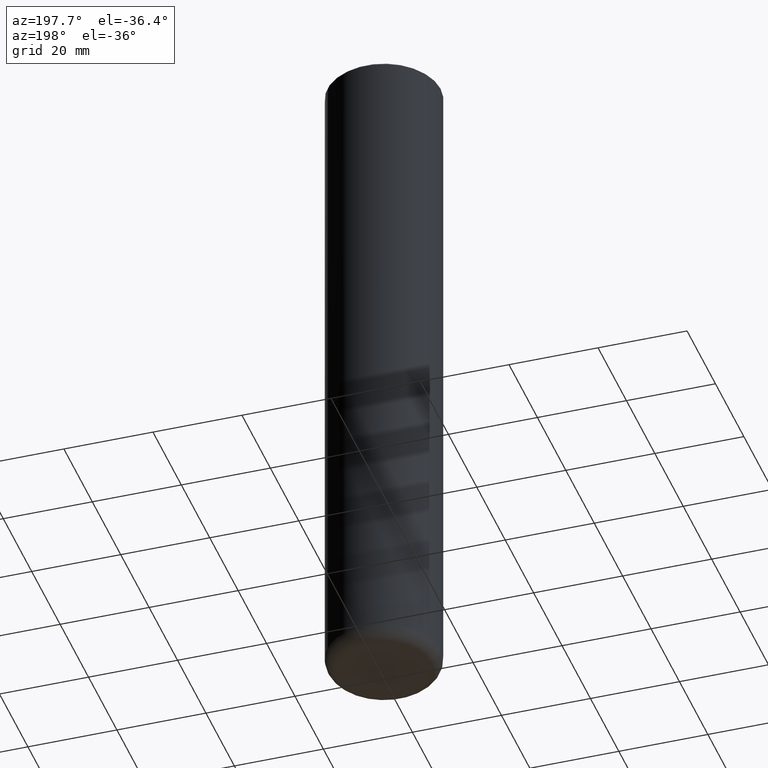
[diagram: clean part render]
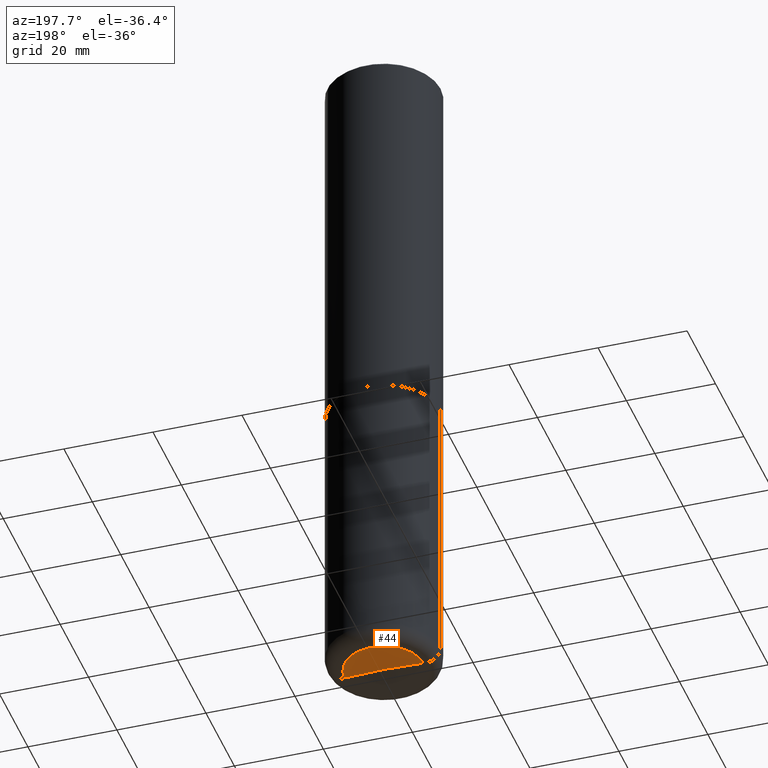
[diagram: same view with one face highlighted and labeled with its STEP entity id]
A machine part, auxiliary view. The second image highlights one B-rep face of the part: STEP entity #44.
In plain terms, the highlighted conical surface has half-angle 88 deg.
Its self-contained STEP definition (entity closure, byte-faithful):
#5 = CONICAL_SURFACE ( 'NONE', #423, 0.3469528157401960411, 1.535889741755011029 ) ;
#10 = CARTESIAN_POINT ( 'NONE',  ( 1.464301836969204116E-28, -2.090486974609824986E-14, -5.987604880927720252 ) ) ;
#27 = CARTESIAN_POINT ( 'NONE',  ( 0.3469528157401960411, -2.332818210049246927E-14, -5.999720740230696236 ) ) ;
#33 = LINE ( 'NONE', #27, #87 ) ;
#44 = ADVANCED_FACE ( 'NONE', ( #63 ), #5, .F. ) ;
#63 = FACE_OUTER_BOUND ( 'NONE', #168, .T. ) ;
#69 = ORIENTED_EDGE ( 'NONE', *, *, #427, .F. ) ;
#74 = ORIENTED_EDGE ( 'NONE', *, *, #340, .F. ) ;
#77 = VERTEX_POINT ( 'NONE', #180 ) ;
#87 = VECTOR ( 'NONE', #374, 39.37007874015748143 ) ;
#92 = EDGE_CURVE ( 'NONE', #224, #77, #259, .T. ) ;
#116 = DIRECTION ( 'NONE',  ( 2.445468806185136597E-29, -3.491481338843145583E-15, -1.000000000000000000 ) ) ;
#164 = CARTESIAN_POINT ( 'NONE',  ( 1.467212991605616561E-28, -2.094791300278565904E-14, -5.999720740230696236 ) ) ;
#168 = EDGE_LOOP ( 'NONE', ( #69, #391, #74 ) ) ;
#180 = CARTESIAN_POINT ( 'NONE',  ( -0.3469528157401960411, -1.852515443955370911E-14, -5.999720740230696236 ) ) ;
#224 = VERTEX_POINT ( 'NONE', #10 ) ;
#245 = CARTESIAN_POINT ( 'NONE',  ( -0.3469528157401960411, -1.852515443955370911E-14, -5.999720740230696236 ) ) ;
#250 = DIRECTION ( 'NONE',  ( -1.000000000000000000, 6.982962677686270655E-15, 0.000000000000000000 ) ) ;
#255 = AXIS2_PLACEMENT_3D ( 'NONE', #164, #411, #293 ) ;
#259 = LINE ( 'NONE', #245, #379 ) ;
#293 = DIRECTION ( 'NONE',  ( 1.000000000000000000, -6.982962677686270655E-15, 0.000000000000000000 ) ) ;
#325 = CARTESIAN_POINT ( 'NONE',  ( 1.467212991605616561E-28, -2.094791300278565904E-14, -5.999720740230696236 ) ) ;
#340 = EDGE_CURVE ( 'NONE', #351, #77, #454, .T. ) ;
#351 = VERTEX_POINT ( 'NONE', #354 ) ;
#354 = CARTESIAN_POINT ( 'NONE',  ( 0.3469528157401960411, -2.332818210049246927E-14, -5.999720740230696236 ) ) ;
#374 = DIRECTION ( 'NONE',  ( 0.9993908270190957621, -6.978169709227537544E-15, -0.03489949670249996999 ) ) ;
#379 = VECTOR ( 'NONE', #415, 39.37007874015748143 ) ;
#391 = ORIENTED_EDGE ( 'NONE', *, *, #92, .T. ) ;
#411 = DIRECTION ( 'NONE',  ( -2.445468806185136597E-29, 3.491481338843145583E-15, 1.000000000000000000 ) ) ;
#415 = DIRECTION ( 'NONE',  ( -0.9993908270190957621, 6.856857904024560415E-15, -0.03489949670249996999 ) ) ;
#423 = AXIS2_PLACEMENT_3D ( 'NONE', #325, #116, #250 ) ;
#427 = EDGE_CURVE ( 'NONE', #224, #351, #33, .T. ) ;
#454 = CIRCLE ( 'NONE', #255, 0.3469528157401960411 ) ;